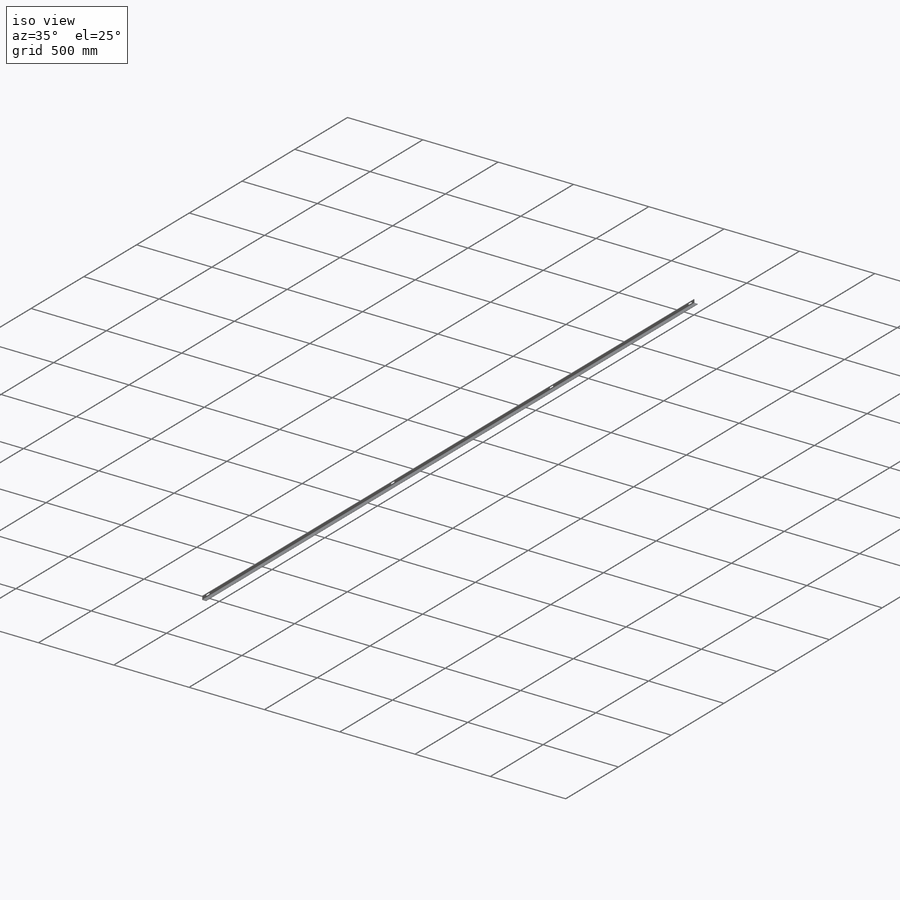
[diagram: iso view]
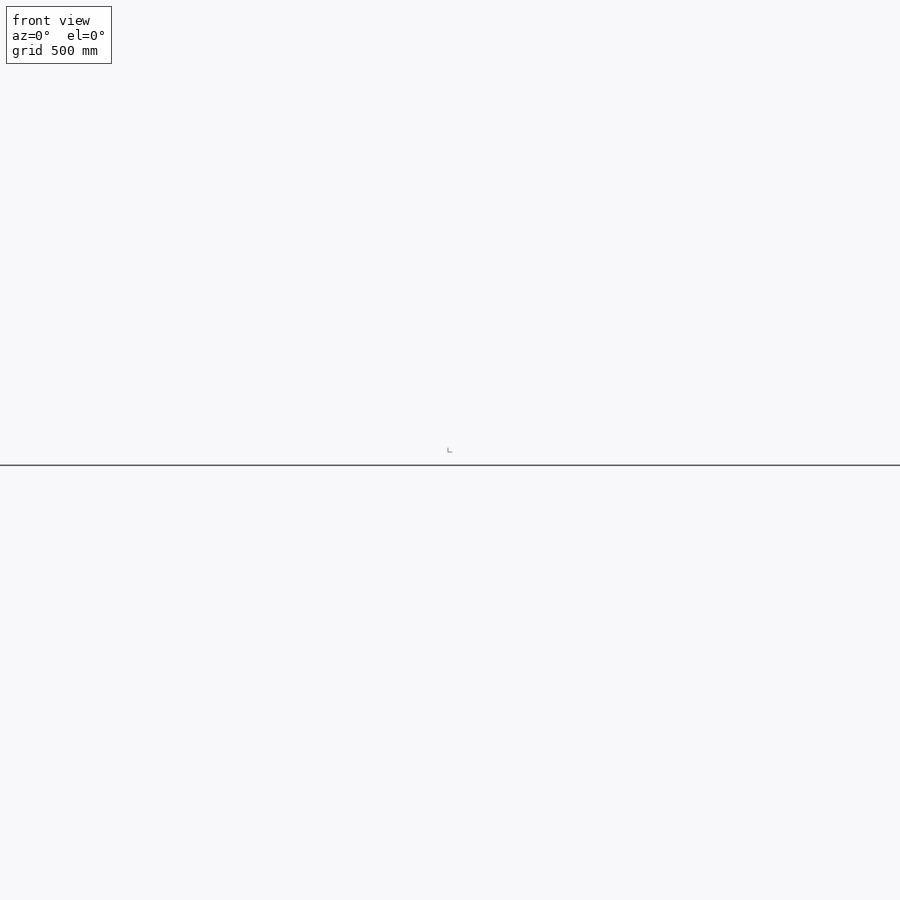
[diagram: front view]
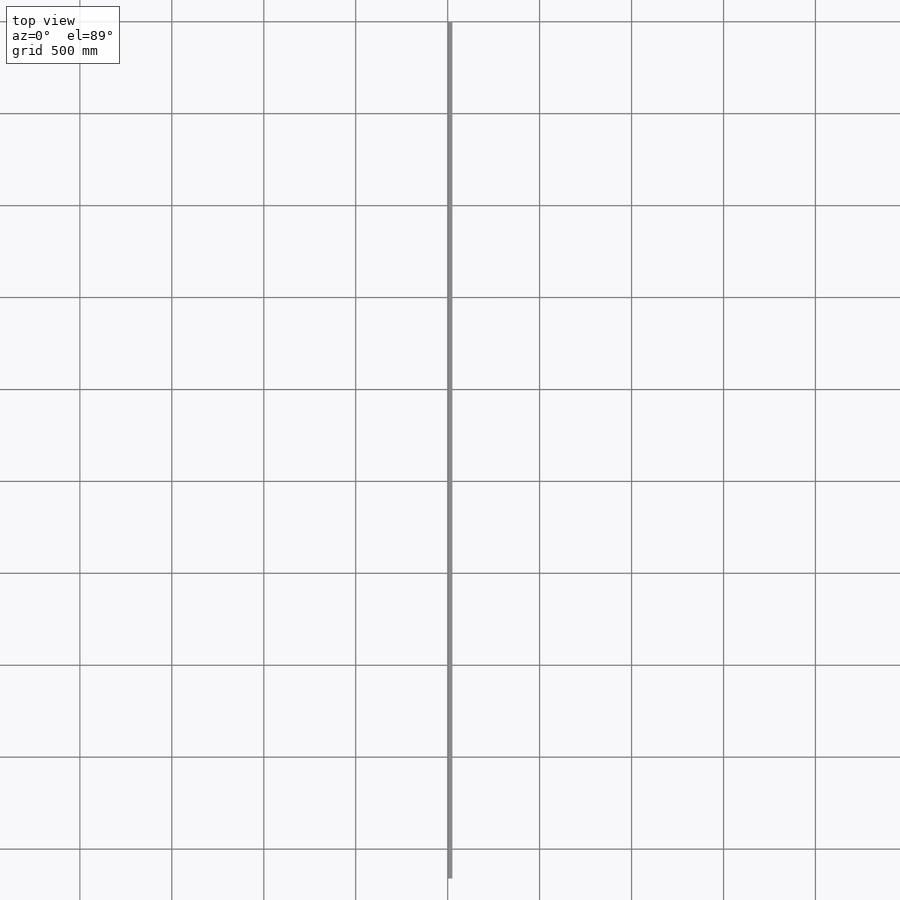
[diagram: top view]
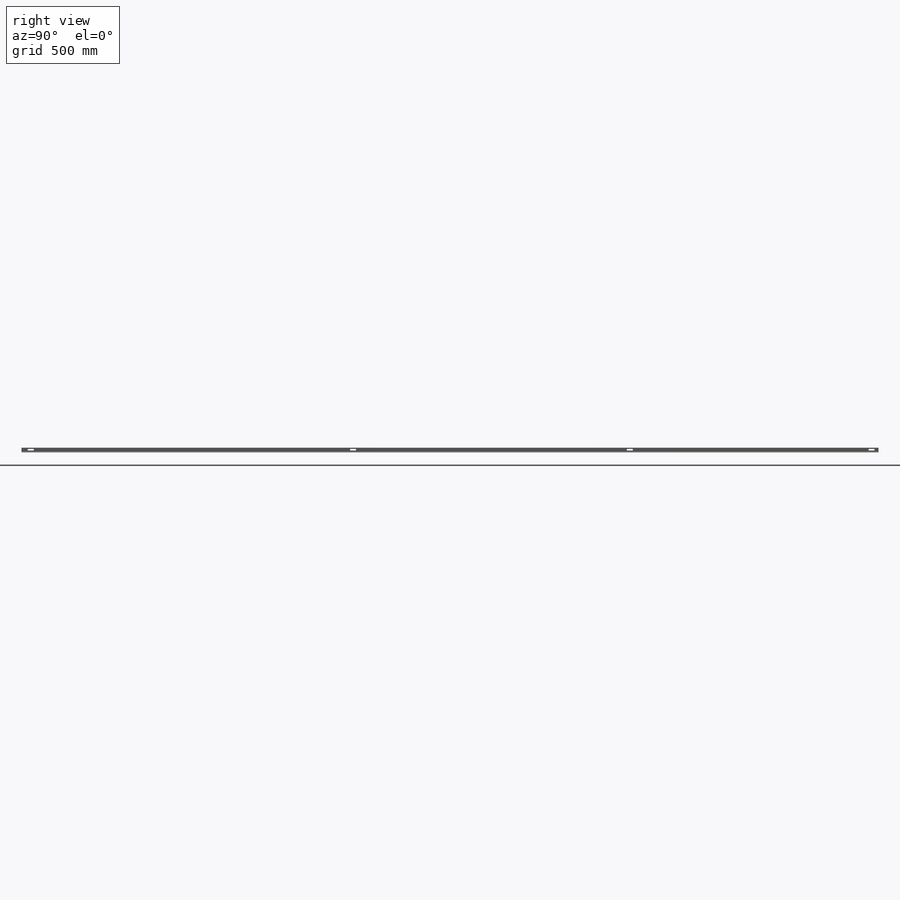
[diagram: right view]
SOLIDWORKS PART (.sldprt)
format: sldprt  version: not decoded by parser v0  size: 1,550,848 bytes
history: native  units: mm
features: sketch x3, pattern_linear x3, material x1, plane x1, fillet x1, cut_extrude x1 + 1 further entry (+11 scaffold rows collapsed)
feature tree (22):
  scaffold x11  (default folders/planes/origin — collapsed)
  material  "Material <not specified>"
  plane  "Side"
  "Design Table"
  sketch  "Sketch1"  dims[c1.D1=25.4mm c1.D2=25.4mm c2.D1=4762.5mm c2.D5=3.175mm c2.D6=2.54mm c2.D7=5.0mm]
  fillet  "Fillet1"  Radius=1.5875mm
  sketch  "SlotSketch"  dims[c1.Length=60.0mm c1.D2=10.0mm c1.D3=55.0mm c1.D4=40.0mm c1.Width=8.7122mm c2.Length=70.0mm c3.Length=25.4mm c3.Locating dim1=38.1mm c3.Locating dim2=~14.200287mm c3.D1=38.1mm c3.D2=14.2875mm]
  cut_extrude  "Slot"  [1 undecoded]
  pattern_linear  "Slot 2"  Count1=2 Count2=1 Spacing1=1879.6mm Spacing2=50mm
  pattern_linear  "Slot 3"  Count1=2 Count2=1 Spacing1=3270.25mm Spacing2=50mm
  pattern_linear  "Slot 4"  Count1=2 Count2=1 Spacing1=4660.9mm Spacing2=50mm
  sketch  "Sketch2"  dims[D1=63.5mm D2=1454.15mm D3=2844.8mm D4=4724.4mm]
decode coverage: 7 of 8 modeling features carry decoded parameters; 1 rows unclassified (native names shown)
note: ~ marks probable driven/reference dimensions
note: 1 parameter value undecoded
note: suppression state not decoded; provenance and decode notes live in map.json
